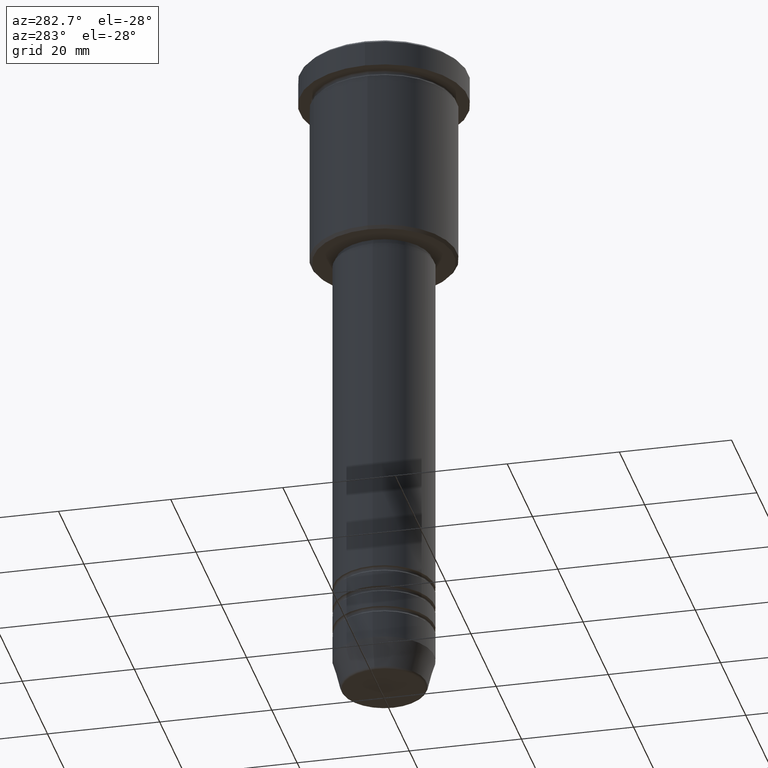
[diagram: clean part render]
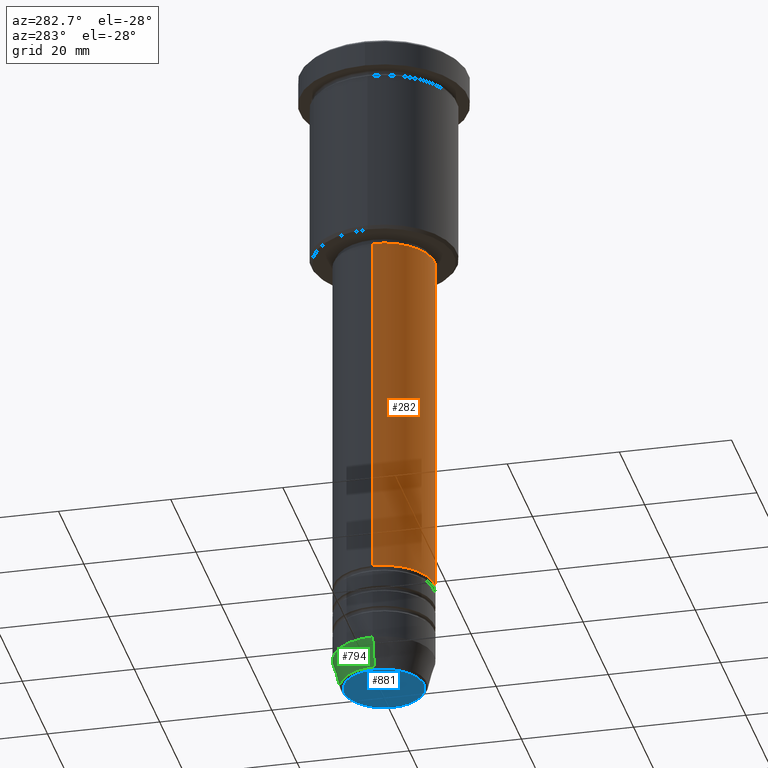
[diagram: same view with three faces highlighted in distinct colors, each labeled with its STEP entity id]
A machine part, auxiliary view with three faces highlighted in distinct colors.
Their STEP definitions:

[orange] entity #282 — the highlighted cylindrical surface (partial cylindrical patch) has radius 9 mm, axis along (-0, -0, 1).
#21 = VERTEX_POINT ( 'NONE', #1137 ) ;
#80 = CIRCLE ( 'NONE', #1094, 8.999999999999998224 ) ;
#106 = CYLINDRICAL_SURFACE ( 'NONE', #684, 9.000000000000000000 ) ;
#126 = CARTESIAN_POINT ( 'NONE',  ( -9.000000000000000000, 1.102182119232617714E-15, 0.000000000000000000 ) ) ;
#152 = DIRECTION ( 'NONE',  ( 1.000000000000000000, 0.000000000000000000, 0.000000000000000000 ) ) ;
#172 = EDGE_CURVE ( 'NONE', #967, #21, #571, .T. ) ;
#201 = CARTESIAN_POINT ( 'NONE',  ( 8.999999999999998224, 0.000000000000000000, -37.00000000000002842 ) ) ;
#226 = CIRCLE ( 'NONE', #1079, 9.000000000000001776 ) ;
#278 = DIRECTION ( 'NONE',  ( -0.000000000000000000, -0.000000000000000000, 1.000000000000000000 ) ) ;
#280 = CARTESIAN_POINT ( 'NONE',  ( 0.000000000000000000, 0.000000000000000000, -100.4999999999999716 ) ) ;
#282 = ADVANCED_FACE ( 'NONE', ( #1021 ), #106, .T. ) ;
#318 = CARTESIAN_POINT ( 'NONE',  ( 9.000000000000000000, 0.000000000000000000, 0.000000000000000000 ) ) ;
#409 = ORIENTED_EDGE ( 'NONE', *, *, #529, .F. ) ;
#512 = DIRECTION ( 'NONE',  ( -0.000000000000000000, -0.000000000000000000, 1.000000000000000000 ) ) ;
#523 = CARTESIAN_POINT ( 'NONE',  ( 9.000000000000001776, 0.000000000000000000, -100.4999999999999716 ) ) ;
#529 = EDGE_CURVE ( 'NONE', #21, #1073, #80, .T. ) ;
#537 = CARTESIAN_POINT ( 'NONE',  ( 0.000000000000000000, 0.000000000000000000, 0.000000000000000000 ) ) ;
#560 = VERTEX_POINT ( 'NONE', #523 ) ;
#571 = LINE ( 'NONE', #126, #948 ) ;
#650 = DIRECTION ( 'NONE',  ( -0.000000000000000000, -0.000000000000000000, 1.000000000000000000 ) ) ;
#684 = AXIS2_PLACEMENT_3D ( 'NONE', #537, #278, #1165 ) ;
#738 = ORIENTED_EDGE ( 'NONE', *, *, #947, .T. ) ;
#770 = DIRECTION ( 'NONE',  ( -0.000000000000000000, -0.000000000000000000, 1.000000000000000000 ) ) ;
#806 = ORIENTED_EDGE ( 'NONE', *, *, #1085, .T. ) ;
#812 = DIRECTION ( 'NONE',  ( 1.000000000000000000, 0.000000000000000000, 0.000000000000000000 ) ) ;
#857 = EDGE_LOOP ( 'NONE', ( #1142, #806, #738, #409 ) ) ;
#878 = DIRECTION ( 'NONE',  ( -0.000000000000000000, -0.000000000000000000, 1.000000000000000000 ) ) ;
#947 = EDGE_CURVE ( 'NONE', #560, #1073, #1158, .T. ) ;
#948 = VECTOR ( 'NONE', #770, 1000.000000000000000 ) ;
#963 = CARTESIAN_POINT ( 'NONE',  ( 0.000000000000000000, 0.000000000000000000, -37.00000000000002842 ) ) ;
#967 = VERTEX_POINT ( 'NONE', #1059 ) ;
#1021 = FACE_OUTER_BOUND ( 'NONE', #857, .T. ) ;
#1059 = CARTESIAN_POINT ( 'NONE',  ( -9.000000000000001776, 1.102182119232617911E-15, -100.4999999999999716 ) ) ;
#1073 = VERTEX_POINT ( 'NONE', #201 ) ;
#1079 = AXIS2_PLACEMENT_3D ( 'NONE', #280, #650, #812 ) ;
#1085 = EDGE_CURVE ( 'NONE', #967, #560, #226, .T. ) ;
#1094 = AXIS2_PLACEMENT_3D ( 'NONE', #963, #878, #152 ) ;
#1114 = VECTOR ( 'NONE', #512, 1000.000000000000000 ) ;
#1137 = CARTESIAN_POINT ( 'NONE',  ( -8.999999999999998224, 1.102182119232617714E-15, -37.00000000000002842 ) ) ;
#1142 = ORIENTED_EDGE ( 'NONE', *, *, #172, .F. ) ;
#1158 = LINE ( 'NONE', #318, #1114 ) ;
#1165 = DIRECTION ( 'NONE',  ( 1.000000000000000000, 0.000000000000000000, 0.000000000000000000 ) ) ;

[blue] entity #881 — the highlighted planar face has unit normal (0, -0, 1).
#14 = FACE_OUTER_BOUND ( 'NONE', #256, .T. ) ;
#17 = EDGE_CURVE ( 'NONE', #466, #856, #558, .T. ) ;
#43 = AXIS2_PLACEMENT_3D ( 'NONE', #785, #717, #395 ) ;
#211 = CARTESIAN_POINT ( 'NONE',  ( 0.000000000000000000, 0.000000000000000000, -120.0000000000000000 ) ) ;
#256 = EDGE_LOOP ( 'NONE', ( #936, #983 ) ) ;
#262 = AXIS2_PLACEMENT_3D ( 'NONE', #1049, #339, #498 ) ;
#339 = DIRECTION ( 'NONE',  ( 0.000000000000000000, 0.000000000000000000, -1.000000000000000000 ) ) ;
#371 = DIRECTION ( 'NONE',  ( 1.000000000000000000, 0.000000000000000000, 0.000000000000000000 ) ) ;
#395 = DIRECTION ( 'NONE',  ( 1.000000000000000000, 0.000000000000000000, 0.000000000000000000 ) ) ;
#466 = VERTEX_POINT ( 'NONE', #666 ) ;
#498 = DIRECTION ( 'NONE',  ( 1.000000000000000000, 0.000000000000000000, 0.000000000000000000 ) ) ;
#558 = CIRCLE ( 'NONE', #43, 7.142615947639340490 ) ;
#612 = EDGE_CURVE ( 'NONE', #856, #466, #1062, .T. ) ;
#666 = CARTESIAN_POINT ( 'NONE',  ( 7.142615947639340490, 0.000000000000000000, -120.0000000000000000 ) ) ;
#682 = DIRECTION ( 'NONE',  ( 0.000000000000000000, -0.000000000000000000, 1.000000000000000000 ) ) ;
#708 = AXIS2_PLACEMENT_3D ( 'NONE', #211, #682, #371 ) ;
#717 = DIRECTION ( 'NONE',  ( 0.000000000000000000, 0.000000000000000000, -1.000000000000000000 ) ) ;
#785 = CARTESIAN_POINT ( 'NONE',  ( 0.000000000000000000, 0.000000000000000000, -120.0000000000000000 ) ) ;
#856 = VERTEX_POINT ( 'NONE', #1027 ) ;
#881 = ADVANCED_FACE ( 'NONE', ( #14 ), #1034, .F. ) ;
#936 = ORIENTED_EDGE ( 'NONE', *, *, #17, .T. ) ;
#983 = ORIENTED_EDGE ( 'NONE', *, *, #612, .T. ) ;
#1027 = CARTESIAN_POINT ( 'NONE',  ( -7.142615947639340490, 9.042911250660025544E-16, -120.0000000000000000 ) ) ;
#1034 = PLANE ( 'NONE',  #708 ) ;
#1049 = CARTESIAN_POINT ( 'NONE',  ( 0.000000000000000000, 0.000000000000000000, -120.0000000000000000 ) ) ;
#1062 = CIRCLE ( 'NONE', #262, 7.142615947639340490 ) ;

[green] entity #794 — the highlighted conical surface has half-angle 15 deg.
#15 = CARTESIAN_POINT ( 'NONE',  ( 0.000000000000000000, 0.000000000000000000, -119.6294095225512422 ) ) ;
#34 = ORIENTED_EDGE ( 'NONE', *, *, #237, .T. ) ;
#45 = AXIS2_PLACEMENT_3D ( 'NONE', #15, #103, #313 ) ;
#100 = DIRECTION ( 'NONE',  ( -0.000000000000000000, -0.000000000000000000, 1.000000000000000000 ) ) ;
#103 = DIRECTION ( 'NONE',  ( -0.000000000000000000, -0.000000000000000000, 1.000000000000000000 ) ) ;
#115 = VECTOR ( 'NONE', #630, 1000.000000000000000 ) ;
#155 = EDGE_LOOP ( 'NONE', ( #810, #34, #370, #701 ) ) ;
#188 = CARTESIAN_POINT ( 'NONE',  ( -9.000000000000001776, 1.102182119232617911E-15, -114.4999999999999858 ) ) ;
#237 = EDGE_CURVE ( 'NONE', #876, #705, #721, .T. ) ;
#259 = CARTESIAN_POINT ( 'NONE',  ( -9.000000000000001776, 1.102182119232617911E-15, -114.4999999999999858 ) ) ;
#293 = AXIS2_PLACEMENT_3D ( 'NONE', #578, #100, #491 ) ;
#313 = DIRECTION ( 'NONE',  ( 1.000000000000000000, 0.000000000000000000, 0.000000000000000000 ) ) ;
#326 = AXIS2_PLACEMENT_3D ( 'NONE', #766, #693, #1116 ) ;
#370 = ORIENTED_EDGE ( 'NONE', *, *, #458, .F. ) ;
#402 = VECTOR ( 'NONE', #890, 1000.000000000000000 ) ;
#424 = CARTESIAN_POINT ( 'NONE',  ( 9.000000000000001776, 0.000000000000000000, -114.4999999999999858 ) ) ;
#442 = EDGE_CURVE ( 'NONE', #934, #876, #1153, .T. ) ;
#458 = EDGE_CURVE ( 'NONE', #568, #705, #853, .T. ) ;
#491 = DIRECTION ( 'NONE',  ( 1.000000000000000000, 0.000000000000000000, 0.000000000000000000 ) ) ;
#568 = VERTEX_POINT ( 'NONE', #982 ) ;
#578 = CARTESIAN_POINT ( 'NONE',  ( 0.000000000000000000, 0.000000000000000000, -114.4999999999999858 ) ) ;
#630 = DIRECTION ( 'NONE',  ( -0.2588190451025214056, 3.169619151431772953E-17, 0.9659258262890680902 ) ) ;
#676 = CARTESIAN_POINT ( 'NONE',  ( -7.625578860783880586, 1.018023096791544096E-15, -119.6294095225512422 ) ) ;
#691 = CARTESIAN_POINT ( 'NONE',  ( 7.625578860783879698, 0.000000000000000000, -119.6294095225512422 ) ) ;
#693 = DIRECTION ( 'NONE',  ( -0.000000000000000000, -0.000000000000000000, 1.000000000000000000 ) ) ;
#701 = ORIENTED_EDGE ( 'NONE', *, *, #974, .F. ) ;
#705 = VERTEX_POINT ( 'NONE', #188 ) ;
#721 = LINE ( 'NONE', #259, #115 ) ;
#766 = CARTESIAN_POINT ( 'NONE',  ( 0.000000000000000000, 0.000000000000000000, -114.4999999999999858 ) ) ;
#794 = ADVANCED_FACE ( 'NONE', ( #943 ), #975, .T. ) ;
#810 = ORIENTED_EDGE ( 'NONE', *, *, #442, .T. ) ;
#853 = CIRCLE ( 'NONE', #326, 9.000000000000001776 ) ;
#876 = VERTEX_POINT ( 'NONE', #676 ) ;
#890 = DIRECTION ( 'NONE',  ( 0.2588190451025214056, 0.000000000000000000, 0.9659258262890680902 ) ) ;
#934 = VERTEX_POINT ( 'NONE', #691 ) ;
#943 = FACE_OUTER_BOUND ( 'NONE', #155, .T. ) ;
#974 = EDGE_CURVE ( 'NONE', #934, #568, #1071, .T. ) ;
#975 = CONICAL_SURFACE ( 'NONE', #293, 9.000000000000001776, 0.2617993877991501295 ) ;
#982 = CARTESIAN_POINT ( 'NONE',  ( 9.000000000000001776, 0.000000000000000000, -114.4999999999999858 ) ) ;
#1071 = LINE ( 'NONE', #424, #402 ) ;
#1116 = DIRECTION ( 'NONE',  ( 1.000000000000000000, 0.000000000000000000, 0.000000000000000000 ) ) ;
#1153 = CIRCLE ( 'NONE', #45, 7.625578860783879698 ) ;